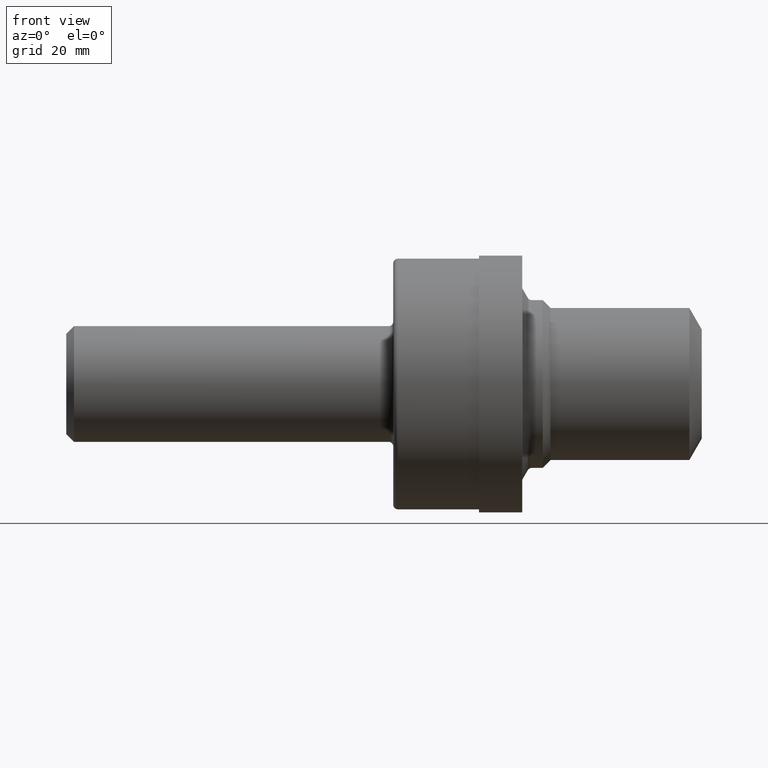
[diagram: clean part render]
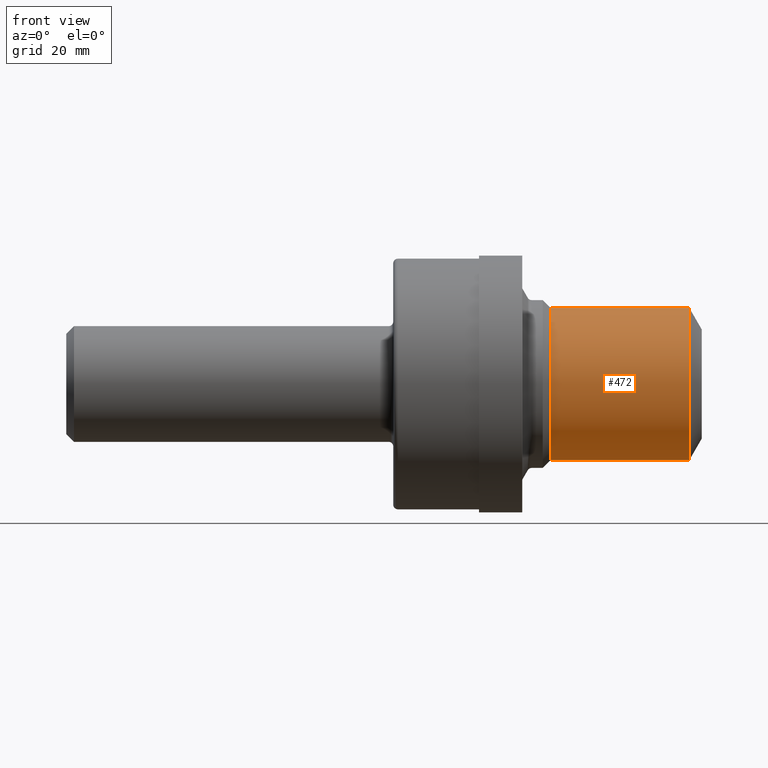
[diagram: same view with one face highlighted and labeled with its STEP entity id]
A machine part, front view. The second image highlights one B-rep face of the part: STEP entity #472.
In plain terms, the highlighted cylindrical surface (partial cylindrical patch) has radius 12.5095 mm, axis along (-1, -0, -0).
Its self-contained STEP definition (entity closure, byte-faithful):
#89 = CARTESIAN_POINT ( 'NONE',  ( 0.000000000000000000, 6.031385485800715365E-17, -0.4924999999999999933 ) ) ;
#120 = CARTESIAN_POINT ( 'NONE',  ( 4.040000000000000036, 0.000000000000000000, 0.000000000000000000 ) ) ;
#124 = EDGE_CURVE ( 'NONE', #221, #355, #659, .T. ) ;
#160 = DIRECTION ( 'NONE',  ( 0.000000000000000000, 0.000000000000000000, 1.000000000000000000 ) ) ;
#181 = CARTESIAN_POINT ( 'NONE',  ( 4.040000000000000036, 6.031385485800715365E-17, -0.4924999999999999933 ) ) ;
#214 = CARTESIAN_POINT ( 'NONE',  ( 3.140599999999999170, 6.031385485800715365E-17, -0.4924999999999999933 ) ) ;
#221 = VERTEX_POINT ( 'NONE', #181 ) ;
#282 = EDGE_CURVE ( 'NONE', #221, #562, #430, .T. ) ;
#295 = ORIENTED_EDGE ( 'NONE', *, *, #124, .F. ) ;
#353 = DIRECTION ( 'NONE',  ( -1.000000000000000000, -0.000000000000000000, -0.000000000000000000 ) ) ;
#355 = VERTEX_POINT ( 'NONE', #214 ) ;
#361 = FACE_OUTER_BOUND ( 'NONE', #801, .T. ) ;
#375 = DIRECTION ( 'NONE',  ( 0.000000000000000000, 0.000000000000000000, 1.000000000000000000 ) ) ;
#418 = VECTOR ( 'NONE', #581, 39.37007874015748143 ) ;
#430 = CIRCLE ( 'NONE', #619, 0.4924999999999999933 ) ;
#439 = ORIENTED_EDGE ( 'NONE', *, *, #597, .T. ) ;
#442 = CIRCLE ( 'NONE', #543, 0.4924999999999999933 ) ;
#472 = ADVANCED_FACE ( 'NONE', ( #361 ), #549, .T. ) ;
#476 = VECTOR ( 'NONE', #525, 39.37007874015748143 ) ;
#489 = EDGE_CURVE ( 'NONE', #355, #748, #442, .T. ) ;
#525 = DIRECTION ( 'NONE',  ( -1.000000000000000000, -0.000000000000000000, -0.000000000000000000 ) ) ;
#532 = CARTESIAN_POINT ( 'NONE',  ( 0.000000000000000000, 0.000000000000000000, 0.4924999999999999933 ) ) ;
#543 = AXIS2_PLACEMENT_3D ( 'NONE', #726, #353, #160 ) ;
#546 = ORIENTED_EDGE ( 'NONE', *, *, #282, .T. ) ;
#549 = CYLINDRICAL_SURFACE ( 'NONE', #630, 0.4924999999999999933 ) ;
#562 = VERTEX_POINT ( 'NONE', #824 ) ;
#581 = DIRECTION ( 'NONE',  ( -1.000000000000000000, -0.000000000000000000, -0.000000000000000000 ) ) ;
#595 = LINE ( 'NONE', #532, #418 ) ;
#596 = CARTESIAN_POINT ( 'NONE',  ( 3.140599999999999170, 0.000000000000000000, 0.4924999999999999933 ) ) ;
#597 = EDGE_CURVE ( 'NONE', #562, #748, #595, .T. ) ;
#605 = DIRECTION ( 'NONE',  ( -1.000000000000000000, -0.000000000000000000, -0.000000000000000000 ) ) ;
#619 = AXIS2_PLACEMENT_3D ( 'NONE', #120, #690, #375 ) ;
#630 = AXIS2_PLACEMENT_3D ( 'NONE', #799, #605, #729 ) ;
#659 = LINE ( 'NONE', #89, #476 ) ;
#690 = DIRECTION ( 'NONE',  ( -1.000000000000000000, -0.000000000000000000, -0.000000000000000000 ) ) ;
#726 = CARTESIAN_POINT ( 'NONE',  ( 3.140599999999999170, 0.000000000000000000, 0.000000000000000000 ) ) ;
#729 = DIRECTION ( 'NONE',  ( 0.000000000000000000, 0.000000000000000000, 1.000000000000000000 ) ) ;
#730 = ORIENTED_EDGE ( 'NONE', *, *, #489, .F. ) ;
#748 = VERTEX_POINT ( 'NONE', #596 ) ;
#799 = CARTESIAN_POINT ( 'NONE',  ( 0.000000000000000000, 0.000000000000000000, 0.000000000000000000 ) ) ;
#801 = EDGE_LOOP ( 'NONE', ( #295, #546, #439, #730 ) ) ;
#824 = CARTESIAN_POINT ( 'NONE',  ( 4.040000000000000036, 0.000000000000000000, 0.4924999999999999933 ) ) ;